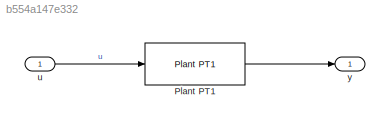
MODEL slx_b554a147e332
KIND model
CONFIG AbsTol = auto
CONFIG EnableMultiTasking = off
CONFIG FixedStep = auto
CONFIG MaxStep = 0.001
CONFIG MinStep = auto
CONFIG RelTol = 1e-3
CONFIG SampleTimeConstraint = Unconstrained
CONFIG SolverName = VariableStepAuto
CONFIG StartTime = 0.0
CONFIG StopTime = 50
WORKSPACE source: mxarray member
WORKSPACE f_r = [100 100]
WORKSPACE j = 1
BLOCK [Reference] Plant PT1  REF=resonance_lib/Plants/Plant PT1  (lib defined in slx_0762205c3b4b)
  Ports = [1, 1]
  SourceBlock = resonance_lib/Plants/Plant PT1
BLOCK [Inport] u
BLOCK [Outport] y
LINE Plant PT1:1 -> y:1
LINE u:1 -> Plant PT1:1
